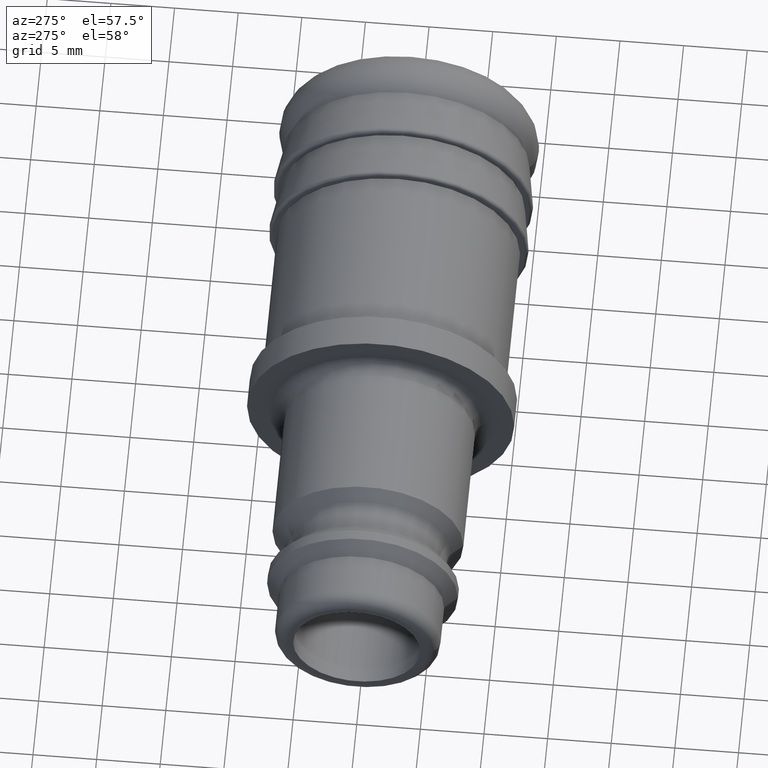
[diagram: clean part render]
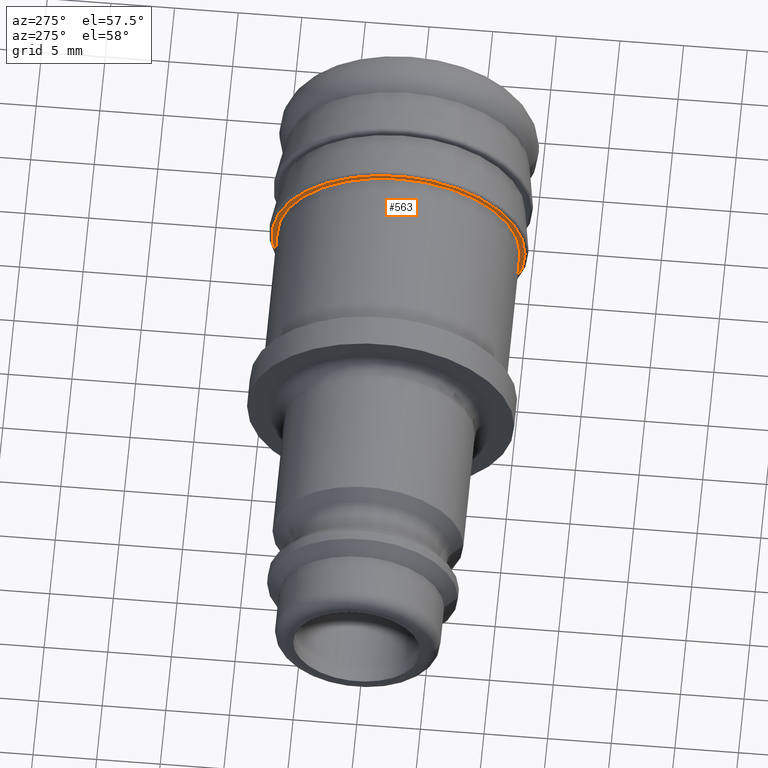
[diagram: same view with one face highlighted and labeled with its STEP entity id]
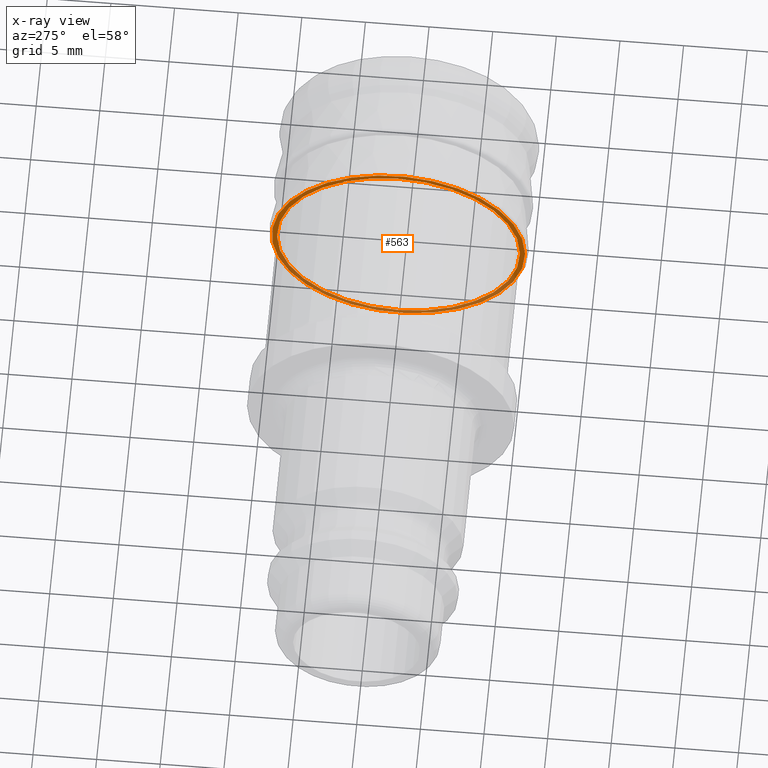
[diagram: x-ray of the same camera — body ghosted, the highlighted face saturated]
A machine part, auxiliary view. The second image highlights one B-rep face of the part: STEP entity #563.
The next image is the same camera in x-ray: the body ghosted, the highlighted face saturated — about 41% of this face is hidden behind the body in this view.
In plain terms, the highlighted planar face has unit normal (-1, 0, 0).
Its self-contained STEP definition (entity closure, byte-faithful):
#101=CARTESIAN_POINT('',(37.499999999999993,-9.549999999999997,0.0));
#102=VERTEX_POINT('',#101);
#103=CARTESIAN_POINT('',(37.499999999999993,0.0,0.0));
#104=DIRECTION('',(-1.0,0.0,0.0));
#105=DIRECTION('',(0.0,-1.0,0.0));
#106=AXIS2_PLACEMENT_3D('',#103,#104,#105);
#107=CIRCLE('',#106,9.549999999999997);
#108=EDGE_CURVE('',#102,#102,#107,.T.);
#537=CARTESIAN_POINT('',(37.499999999999993,-9.949999999999999,0.0));
#538=VERTEX_POINT('',#537);
#539=CARTESIAN_POINT('',(37.499999999999993,0.0,0.0));
#540=DIRECTION('',(-1.0,0.0,0.0));
#541=DIRECTION('',(0.0,-1.0,0.0));
#542=AXIS2_PLACEMENT_3D('',#539,#540,#541);
#543=CIRCLE('',#542,9.949999999999999);
#544=EDGE_CURVE('',#538,#538,#543,.T.);
#552=CARTESIAN_POINT('',(37.499999999999993,-9.749999999999998,0.0));
#553=DIRECTION('',(-1.0,0.0,0.0));
#554=DIRECTION('',(0.0,0.0,1.0));
#555=AXIS2_PLACEMENT_3D('',#552,#553,#554);
#556=PLANE('',#555);
#557=ORIENTED_EDGE('',*,*,#544,.T.);
#558=EDGE_LOOP('',(#557));
#559=FACE_OUTER_BOUND('',#558,.T.);
#560=ORIENTED_EDGE('',*,*,#108,.F.);
#561=EDGE_LOOP('',(#560));
#562=FACE_BOUND('',#561,.T.);
#563=ADVANCED_FACE('',(#559,#562),#556,.T.);